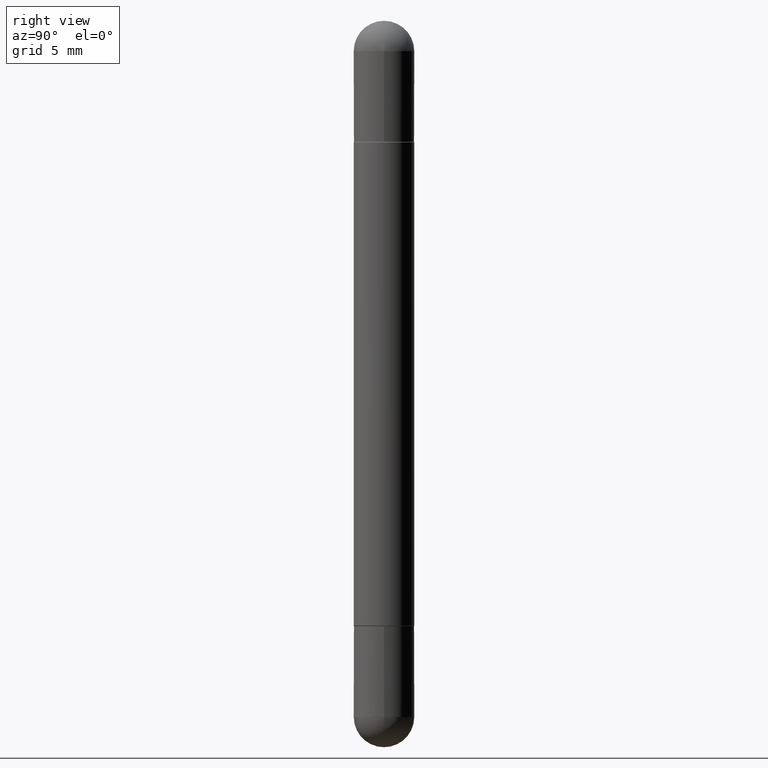
[diagram: clean part render]
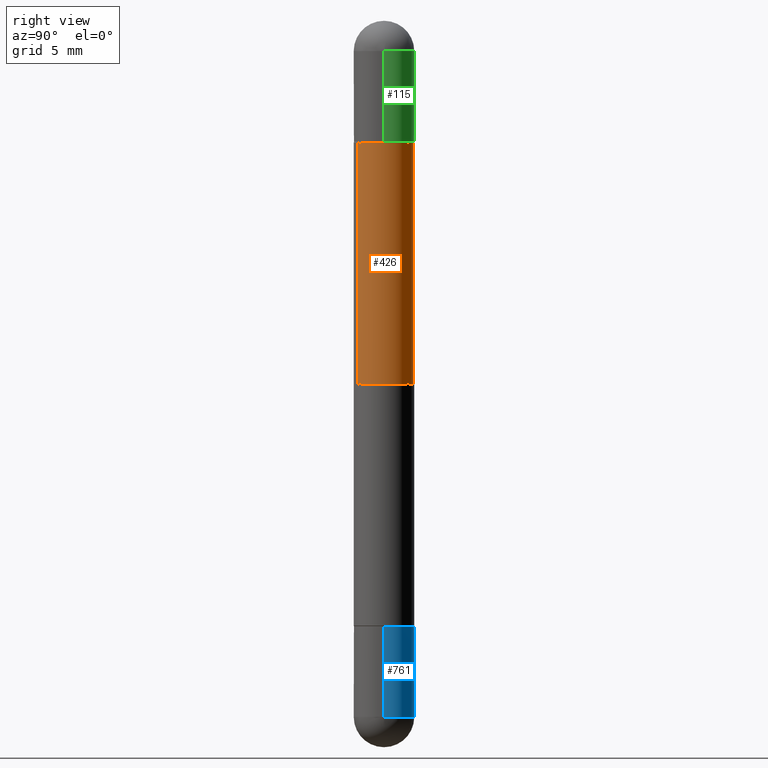
[diagram: same view with three faces highlighted in distinct colors, each labeled with its STEP entity id]
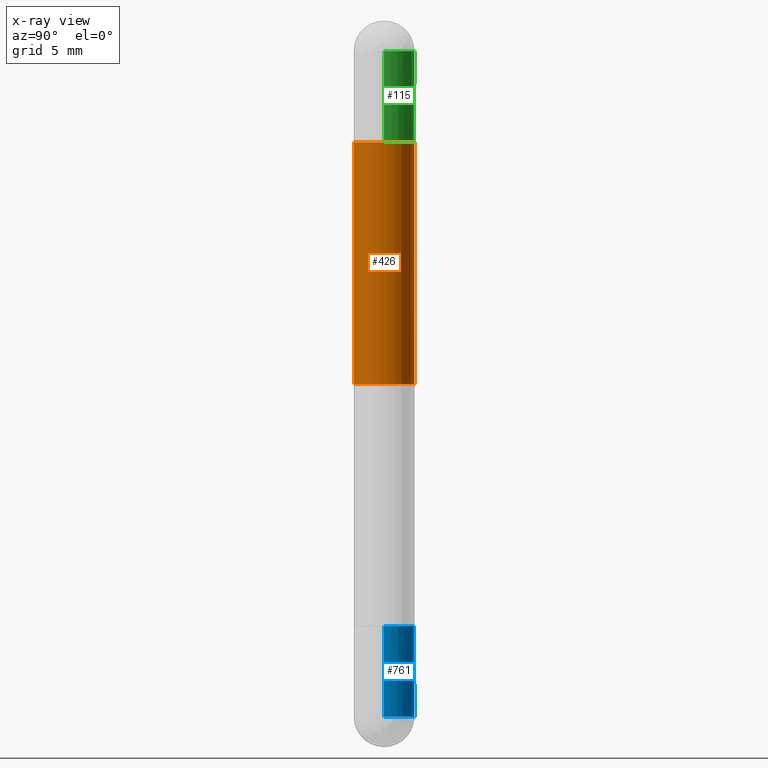
[diagram: x-ray of the same camera — body ghosted, the three highlighted faces saturated]
A machine part, right view with three faces highlighted in distinct colors.
The next image is the same camera in x-ray (body ghosted, the three faces saturated) — at least one of them is partly hidden behind the body in this view.
Their STEP definitions:

[orange] entity #426 — the highlighted cylindrical surface (edge-blend (fillet) strip) has radius 1.5875 mm, axis along (-0, 0, -1).
#5 = VECTOR ( 'NONE', #60, 39.37007874015748143 ) ;
#49 = ORIENTED_EDGE ( 'NONE', *, *, #590, .F. ) ;
#52 = DIRECTION ( 'NONE',  ( -0.000000000000000000, -0.000000000000000000, -1.000000000000000000 ) ) ;
#60 = DIRECTION ( 'NONE',  ( -2.454549198574291714E-29, 3.478477700118036560E-15, -1.000000000000000000 ) ) ;
#67 = CARTESIAN_POINT ( 'NONE',  ( -4.364351673553922611E-16, -0.06250000000000009714, -1.500000000000000666 ) ) ;
#144 = DIRECTION ( 'NONE',  ( -1.000000000000000000, 0.000000000000000000, 0.000000000000000000 ) ) ;
#152 = VECTOR ( 'NONE', #556, 39.37007874015748143 ) ;
#161 = VERTEX_POINT ( 'NONE', #291 ) ;
#165 = DIRECTION ( 'NONE',  ( -6.982962677686266711E-15, -1.000000000000000000, -3.278217592397107185E-15 ) ) ;
#180 = CYLINDRICAL_SURFACE ( 'NONE', #624, 0.06250000000000009714 ) ;
#185 = CARTESIAN_POINT ( 'NONE',  ( 4.287811248607212650E-16, 0.06250000000000009714, -1.500000000000000222 ) ) ;
#196 = CARTESIAN_POINT ( 'NONE',  ( -4.364351673553621857E-16, -0.06250000000000452416, -0.2510000000000006115 ) ) ;
#210 = AXIS2_PLACEMENT_3D ( 'NONE', #617, #52, #144 ) ;
#243 = LINE ( 'NONE', #185, #152 ) ;
#273 = VERTEX_POINT ( 'NONE', #196 ) ;
#290 = CARTESIAN_POINT ( 'NONE',  ( 4.287811248607524250E-16, 0.06249999999999581585, -0.2510000000000002229 ) ) ;
#291 = CARTESIAN_POINT ( 'NONE',  ( 4.287811248607516854E-16, 0.06249999999999748118, -0.7500000000000002220 ) ) ;
#307 = DIRECTION ( 'NONE',  ( -6.982962677686265133E-15, -1.000000000000000000, -4.370956789862814050E-15 ) ) ;
#357 = EDGE_CURVE ( 'NONE', #273, #800, #363, .T. ) ;
#363 = CIRCLE ( 'NONE', #730, 0.06250000000000016653 ) ;
#372 = EDGE_LOOP ( 'NONE', ( #605, #765, #582, #49 ) ) ;
#405 = EDGE_CURVE ( 'NONE', #273, #534, #501, .T. ) ;
#411 = EDGE_CURVE ( 'NONE', #800, #161, #243, .T. ) ;
#426 = ADVANCED_FACE ( 'NONE', ( #749 ), #180, .T. ) ;
#430 = DIRECTION ( 'NONE',  ( -2.454549198574291714E-29, 3.478477700118036955E-15, -1.000000000000000000 ) ) ;
#440 = CARTESIAN_POINT ( 'NONE',  ( -4.364351673553677571E-16, -0.06250000000000270617, -0.7500000000000002220 ) ) ;
#501 = LINE ( 'NONE', #67, #5 ) ;
#534 = VERTEX_POINT ( 'NONE', #440 ) ;
#556 = DIRECTION ( 'NONE',  ( -2.454549198574291714E-29, 3.478477700118036560E-15, -1.000000000000000000 ) ) ;
#582 = ORIENTED_EDGE ( 'NONE', *, *, #405, .T. ) ;
#590 = EDGE_CURVE ( 'NONE', #161, #534, #679, .T. ) ;
#605 = ORIENTED_EDGE ( 'NONE', *, *, #411, .F. ) ;
#613 = DIRECTION ( 'NONE',  ( 2.454549198574291714E-29, -3.478477700118036955E-15, 1.000000000000000000 ) ) ;
#617 = CARTESIAN_POINT ( 'NONE',  ( 1.840911898930719346E-29, -2.608858275088528603E-15, -0.7500000000000002220 ) ) ;
#620 = CARTESIAN_POINT ( 'NONE',  ( 0.000000000000000000, 0.000000000000000000, -1.500000000000000444 ) ) ;
#624 = AXIS2_PLACEMENT_3D ( 'NONE', #620, #430, #307 ) ;
#679 = CIRCLE ( 'NONE', #210, 0.06250000000000009714 ) ;
#730 = AXIS2_PLACEMENT_3D ( 'NONE', #733, #613, #165 ) ;
#733 = CARTESIAN_POINT ( 'NONE',  ( 3.065731949019290085E-29, -4.344618647447427774E-15, -0.2510000000000003895 ) ) ;
#749 = FACE_OUTER_BOUND ( 'NONE', #372, .T. ) ;
#765 = ORIENTED_EDGE ( 'NONE', *, *, #357, .F. ) ;
#800 = VERTEX_POINT ( 'NONE', #290 ) ;

[blue] entity #761 — the highlighted cylindrical surface (edge-blend (fillet) strip) has radius 1.5875 mm, axis along (-0, 0, 1).
#27 = ORIENTED_EDGE ( 'NONE', *, *, #321, .T. ) ;
#28 = CARTESIAN_POINT ( 'NONE',  ( -0.06250000000000001388, 4.440892098500627148E-16, -3.074334431409317165E-30 ) ) ;
#29 = AXIS2_PLACEMENT_3D ( 'NONE', #134, #384, #580 ) ;
#38 = EDGE_CURVE ( 'NONE', #187, #201, #361, .T. ) ;
#53 = VERTEX_POINT ( 'NONE', #225 ) ;
#59 = CIRCLE ( 'NONE', #386, 0.06250000000000001388 ) ;
#86 = AXIS2_PLACEMENT_3D ( 'NONE', #443, #375, #646 ) ;
#131 = CARTESIAN_POINT ( 'NONE',  ( 4.364351673554259849E-16, 0.06249999999999485828, -1.437500000000000444 ) ) ;
#134 = CARTESIAN_POINT ( 'NONE',  ( 3.515361408891134418E-29, -5.019004424587023131E-15, -1.437500000000000222 ) ) ;
#153 = LINE ( 'NONE', #160, #665 ) ;
#156 = DIRECTION ( 'NONE',  ( 1.000000000000000000, -6.982962677686261189E-15, 0.000000000000000000 ) ) ;
#160 = CARTESIAN_POINT ( 'NONE',  ( 0.06250000000000001388, -4.364351673553918173E-16, 3.047610484872460571E-30 ) ) ;
#166 = CARTESIAN_POINT ( 'NONE',  ( 3.515361408891134418E-29, -5.019004424587023131E-15, -1.437500000000000222 ) ) ;
#187 = VERTEX_POINT ( 'NONE', #131 ) ;
#192 = VERTEX_POINT ( 'NONE', #768 ) ;
#199 = VERTEX_POINT ( 'NONE', #452 ) ;
#201 = VERTEX_POINT ( 'NONE', #569 ) ;
#224 = DIRECTION ( 'NONE',  ( 1.000000000000000000, -6.982962677686267499E-15, 4.876176775795935793E-29 ) ) ;
#225 = CARTESIAN_POINT ( 'NONE',  ( -0.06250000000000001388, -4.247588839220414790E-15, -1.250000000000000000 ) ) ;
#230 = DIRECTION ( 'NONE',  ( -2.445468806185136877E-29, 3.491481338843145188E-15, 1.000000000000000000 ) ) ;
#292 = EDGE_CURVE ( 'NONE', #192, #53, #434, .T. ) ;
#294 = ORIENTED_EDGE ( 'NONE', *, *, #759, .F. ) ;
#321 = EDGE_CURVE ( 'NONE', #201, #53, #794, .T. ) ;
#351 = ORIENTED_EDGE ( 'NONE', *, *, #38, .T. ) ;
#361 = CIRCLE ( 'NONE', #29, 0.06250000000000001388 ) ;
#375 = DIRECTION ( 'NONE',  ( -2.445468806185136597E-29, 3.491481338843145583E-15, 1.000000000000000000 ) ) ;
#376 = EDGE_LOOP ( 'NONE', ( #351, #27, #425, #294, #728 ) ) ;
#384 = DIRECTION ( 'NONE',  ( -2.445468806185136597E-29, 3.491481338843145583E-15, 1.000000000000000000 ) ) ;
#386 = AXIS2_PLACEMENT_3D ( 'NONE', #166, #725, #156 ) ;
#409 = DIRECTION ( 'NONE',  ( -2.445468806185136597E-29, 3.491481338843145583E-15, 1.000000000000000000 ) ) ;
#425 = ORIENTED_EDGE ( 'NONE', *, *, #292, .F. ) ;
#434 = CIRCLE ( 'NONE', #86, 0.06250000000000001388 ) ;
#443 = CARTESIAN_POINT ( 'NONE',  ( 3.056836007731421306E-29, -4.364351673553932471E-15, -1.250000000000000000 ) ) ;
#452 = CARTESIAN_POINT ( 'NONE',  ( 0.06250000000000001388, -5.128113216425869076E-15, -1.437500000000000222 ) ) ;
#469 = DIRECTION ( 'NONE',  ( -2.445468806185136877E-29, 3.491481338843145188E-15, 1.000000000000000000 ) ) ;
#478 = AXIS2_PLACEMENT_3D ( 'NONE', #535, #409, #224 ) ;
#526 = FACE_OUTER_BOUND ( 'NONE', #376, .T. ) ;
#535 = CARTESIAN_POINT ( 'NONE',  ( 0.000000000000000000, 0.000000000000000000, 0.000000000000000000 ) ) ;
#569 = CARTESIAN_POINT ( 'NONE',  ( -0.06250000000000001388, -4.247588839220414790E-15, -1.437500000000000222 ) ) ;
#580 = DIRECTION ( 'NONE',  ( 1.000000000000000000, -6.982962677686261189E-15, 0.000000000000000000 ) ) ;
#601 = VECTOR ( 'NONE', #230, 39.37007874015748143 ) ;
#646 = DIRECTION ( 'NONE',  ( 1.000000000000000000, -6.982962677686269077E-15, 0.000000000000000000 ) ) ;
#665 = VECTOR ( 'NONE', #469, 39.37007874015748143 ) ;
#725 = DIRECTION ( 'NONE',  ( -2.445468806185136597E-29, 3.491481338843145583E-15, 1.000000000000000000 ) ) ;
#728 = ORIENTED_EDGE ( 'NONE', *, *, #780, .T. ) ;
#729 = CYLINDRICAL_SURFACE ( 'NONE', #478, 0.06250000000000001388 ) ;
#759 = EDGE_CURVE ( 'NONE', #199, #192, #153, .T. ) ;
#761 = ADVANCED_FACE ( 'NONE', ( #526 ), #729, .T. ) ;
#768 = CARTESIAN_POINT ( 'NONE',  ( 0.06250000000000001388, -4.800786840909324141E-15, -1.250000000000000000 ) ) ;
#780 = EDGE_CURVE ( 'NONE', #199, #187, #59, .T. ) ;
#794 = LINE ( 'NONE', #28, #601 ) ;

[green] entity #115 — the highlighted cylindrical surface (edge-blend (fillet) strip) has radius 1.5875 mm, axis along (-0, 0, -1).
#1 = EDGE_LOOP ( 'NONE', ( #183, #119, #707, #574, #449 ) ) ;
#18 = CIRCLE ( 'NONE', #174, 0.06250000000000001388 ) ;
#41 = AXIS2_PLACEMENT_3D ( 'NONE', #157, #407, #533 ) ;
#54 = CARTESIAN_POINT ( 'NONE',  ( 3.515361408891134418E-29, -5.019004424587023131E-15, -0.06250000000000022204 ) ) ;
#85 = FACE_OUTER_BOUND ( 'NONE', #1, .T. ) ;
#110 = CARTESIAN_POINT ( 'NONE',  ( -0.06250000000000001388, -4.262896924209756684E-15, -0.2500000000000003331 ) ) ;
#115 = ADVANCED_FACE ( 'NONE', ( #85 ), #350, .T. ) ;
#119 = ORIENTED_EDGE ( 'NONE', *, *, #138, .F. ) ;
#124 = VERTEX_POINT ( 'NONE', #779 ) ;
#138 = EDGE_CURVE ( 'NONE', #739, #124, #18, .T. ) ;
#154 = DIRECTION ( 'NONE',  ( 2.445468806185136597E-29, -3.491481338843145583E-15, 1.000000000000000000 ) ) ;
#157 = CARTESIAN_POINT ( 'NONE',  ( 0.000000000000000000, 0.000000000000000000, -1.500000000000000444 ) ) ;
#174 = AXIS2_PLACEMENT_3D ( 'NONE', #655, #154, #282 ) ;
#183 = ORIENTED_EDGE ( 'NONE', *, *, #216, .F. ) ;
#190 = DIRECTION ( 'NONE',  ( 2.445468806185136597E-29, -3.491481338843145583E-15, 1.000000000000000000 ) ) ;
#216 = EDGE_CURVE ( 'NONE', #124, #463, #566, .T. ) ;
#220 = DIRECTION ( 'NONE',  ( 1.000000000000000000, -6.982962677686269077E-15, 0.000000000000000000 ) ) ;
#222 = VECTOR ( 'NONE', #531, 39.37007874015748143 ) ;
#282 = DIRECTION ( 'NONE',  ( 1.000000000000000000, -6.982962677686261189E-15, 0.000000000000000000 ) ) ;
#283 = CARTESIAN_POINT ( 'NONE',  ( 0.06250000000000001388, -5.128113216425869076E-15, -0.06250000000000022204 ) ) ;
#288 = CARTESIAN_POINT ( 'NONE',  ( 0.06250000000000001388, -4.364351673553918173E-16, -1.500000000000000444 ) ) ;
#332 = EDGE_CURVE ( 'NONE', #737, #414, #481, .T. ) ;
#350 = CYLINDRICAL_SURFACE ( 'NONE', #41, 0.06250000000000001388 ) ;
#402 = CARTESIAN_POINT ( 'NONE',  ( 3.056836007731421306E-29, -4.364351673553932471E-15, -0.2500000000000003331 ) ) ;
#406 = DIRECTION ( 'NONE',  ( 2.445468806185136597E-29, -3.491481338843145583E-15, 1.000000000000000000 ) ) ;
#407 = DIRECTION ( 'NONE',  ( -2.445468806185136597E-29, 3.491481338843145583E-15, -1.000000000000000000 ) ) ;
#413 = EDGE_CURVE ( 'NONE', #737, #739, #720, .T. ) ;
#414 = VERTEX_POINT ( 'NONE', #745 ) ;
#449 = ORIENTED_EDGE ( 'NONE', *, *, #789, .T. ) ;
#463 = VERTEX_POINT ( 'NONE', #110 ) ;
#481 = LINE ( 'NONE', #288, #222 ) ;
#493 = DIRECTION ( 'NONE',  ( 1.000000000000000000, -6.982962677686261189E-15, 0.000000000000000000 ) ) ;
#530 = AXIS2_PLACEMENT_3D ( 'NONE', #402, #406, #220 ) ;
#531 = DIRECTION ( 'NONE',  ( -2.445468806185136877E-29, 3.491481338843145188E-15, -1.000000000000000000 ) ) ;
#533 = DIRECTION ( 'NONE',  ( 1.000000000000000000, -6.982962677686267499E-15, 0.000000000000000000 ) ) ;
#566 = LINE ( 'NONE', #641, #689 ) ;
#572 = CIRCLE ( 'NONE', #530, 0.06250000000000001388 ) ;
#574 = ORIENTED_EDGE ( 'NONE', *, *, #332, .T. ) ;
#638 = AXIS2_PLACEMENT_3D ( 'NONE', #54, #190, #493 ) ;
#641 = CARTESIAN_POINT ( 'NONE',  ( -0.06250000000000001388, 4.287811248607208706E-16, -1.500000000000000444 ) ) ;
#655 = CARTESIAN_POINT ( 'NONE',  ( 3.515361408891134418E-29, -5.019004424587023131E-15, -0.06250000000000022204 ) ) ;
#689 = VECTOR ( 'NONE', #771, 39.37007874015748143 ) ;
#707 = ORIENTED_EDGE ( 'NONE', *, *, #413, .F. ) ;
#720 = CIRCLE ( 'NONE', #638, 0.06250000000000001388 ) ;
#736 = CARTESIAN_POINT ( 'NONE',  ( 4.364351673554259849E-16, 0.06249999999999485828, -0.06250000000000000000 ) ) ;
#737 = VERTEX_POINT ( 'NONE', #283 ) ;
#739 = VERTEX_POINT ( 'NONE', #736 ) ;
#745 = CARTESIAN_POINT ( 'NONE',  ( 0.06250000000000001388, -4.800786840909324141E-15, -0.2500000000000003331 ) ) ;
#771 = DIRECTION ( 'NONE',  ( -2.445468806185136877E-29, 3.491481338843145188E-15, -1.000000000000000000 ) ) ;
#779 = CARTESIAN_POINT ( 'NONE',  ( -0.06250000000000001388, -4.262896924209757473E-15, -0.06250000000000022204 ) ) ;
#789 = EDGE_CURVE ( 'NONE', #414, #463, #572, .T. ) ;